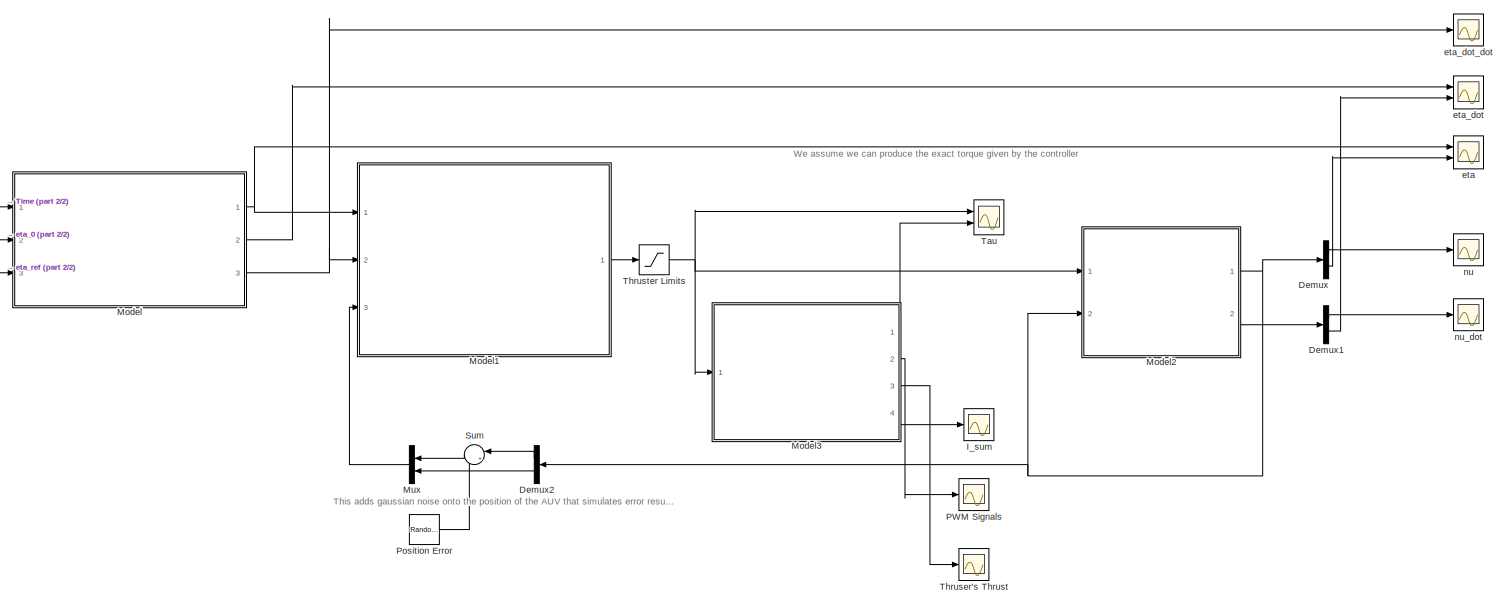
[diagram: root canvas - part 1/2, most of the canvas]
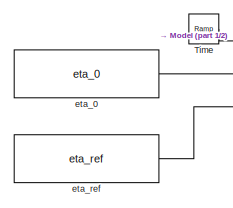
[diagram: root canvas - part 2/2, middle left region]
MODEL slx_5f0453d92f2a
KIND model
CONFIG AbsTol = auto
CONFIG EnableMultiTasking = off
CONFIG FixedStep = auto
CONFIG MaxStep = auto
CONFIG MinStep = auto
CONFIG RelTol = 1e-3
CONFIG SampleTimeConstraint = Unconstrained
CONFIG Solver = VariableStepAuto
CONFIG SolverName = VariableStepAuto
CONFIG StartTime = 0.0
CONFIG StopTime = 60.0
BLOCK [Demux] Demux
  DisplayOption = bar
  Outputs = [6,6]
  Ports = [1, 2]
BLOCK [Demux] Demux1
  DisplayOption = bar
  Outputs = [6,6]
  Ports = [1, 2]
BLOCK [Demux] Demux2
  DisplayOption = bar
  Outputs = 2
  Ports = [1, 2]
BLOCK [Scope] I_sum
  Floating = off
  NumInputPorts = 1
  Ports = [1]
  ScopeSpecificationString = Simulink.scopes.TimeScopeBlockCfg('CurrentConfiguration', extmgr.ConfigurationSet(extmgr.Configuration('Core','General UI',true),extmgr.Configuration('Core','Source UI',true),extmgr.Configuration('Sources','WiredSimulink',true,'DataLoggingVariableName','ScopeData1'),extmgr.Configuration('Visuals','Time Domain',true,'SerializedDisplays',{struct('MinYLimReal','-17.529','MaxYLimReal','22.16106','YLab...<+1443ch>
BLOCK [ModelReference] Model
  ModelNameDialog = trajectory_planner.slx
  ModelReferenceVersion = 1.30
  Ports = [3, 3]
BLOCK [ModelReference] Model1
  ModelNameDialog = controller.slx
  ModelReferenceVersion = 1.73
  Ports = [3, 1]
BLOCK [ModelReference] Model2
  ModelNameDialog = auv_model
  ModelReferenceVersion = 1.19
  Ports = [2, 2]
BLOCK [ModelReference] Model3
  ModelNameDialog = thrust_allocation.slx
  ModelReferenceVersion = 1.76
  Ports = [1, 4]
BLOCK [Mux] Mux
  DisplayOption = bar
  Inputs = 2
  Ports = [2, 1]
BLOCK [Scope] PWM Signals
  Floating = off
  NumInputPorts = 1
  Ports = [1]
  ScopeSpecificationString = Simulink.scopes.TimeScopeBlockCfg('CurrentConfiguration', extmgr.ConfigurationSet(extmgr.Configuration('Core','General UI',true),extmgr.Configuration('Core','Source UI',true),extmgr.Configuration('Sources','WiredSimulink',true,'DataLoggingVariableName','ScopeData2'),extmgr.Configuration('Visuals','Time Domain',true,'SerializedDisplays',{struct('MinYLimReal','1212.01711','MaxYLimReal','1716.52304',...<+1573ch>
BLOCK [RandomNumber] Position Error
  Mean = 0.1
  SampleTime = 0.25
  Seed = 1
  Variance = 0.2
BLOCK [Sum] Sum
  IconShape = round
  InputSameDT = off
  Inputs = |++
  OutDataTypeStr = Inherit: Inherit via internal rule
  Ports = [2, 1]
  SaturateOnIntegerOverflow = off
BLOCK [Scope] Tau
  Floating = off
  NumInputPorts = 2
  Ports = [2]
  ScopeSpecificationString = Simulink.scopes.TimeScopeBlockCfg('CurrentConfiguration', extmgr.ConfigurationSet(extmgr.Configuration('Core','General UI',true),extmgr.Configuration('Core','Source UI',true),extmgr.Configuration('Sources','WiredSimulink',true,'DataLoggingVariableName','ScopeData1'),extmgr.Configuration('Visuals','Time Domain',true,'SerializedDisplays',{struct('MinYLimReal','-10.44325','MaxYLimReal','83.07524','YL...<+1686ch>
BLOCK [Scope] Thruser's Thrust
  Floating = off
  NumInputPorts = 1
  Ports = [1]
  ScopeSpecificationString = Simulink.scopes.TimeScopeBlockCfg('CurrentConfiguration', extmgr.ConfigurationSet(extmgr.Configuration('Core','General UI',true),extmgr.Configuration('Core','Source UI',true),extmgr.Configuration('Sources','WiredSimulink',true,'DataLoggingVariableName','ScopeData3'),extmgr.Configuration('Visuals','Time Domain',true,'SerializedDisplays',{struct('MinYLimReal','-17.529','MaxYLimReal','17.297','YLabel...<+1532ch>
BLOCK [Saturate] Thruster Limits
  InputPortMap = u0
  LowerLimit = thrust_lower_limit
  Ports = [1, 1]
  UpperLimit = thrust_upper_limit
BLOCK [Reference] Time   REF=simulink/Sources/Ramp
  Ports = [0, 1]
  SourceBlock = simulink/Sources/Ramp
  SourceProductBaseCode = SL
  SourceProductName = Simulink
  SourceType = Ramp
BLOCK [Scope] eta
  Floating = off
  NumInputPorts = 2
  Ports = [2]
  ScopeSpecificationString = Simulink.scopes.TimeScopeBlockCfg('CurrentConfiguration', extmgr.ConfigurationSet(extmgr.Configuration('Core','General UI',true),extmgr.Configuration('Core','Source UI',true),extmgr.Configuration('Sources','WiredSimulink',true,'DataLoggingVariableName','ScopeData2'),extmgr.Configuration('Visuals','Time Domain',true,'SerializedDisplays',{struct('MinYLimReal','-0.87581','MaxYLimReal','7.88226','YLab...<+1576ch>
BLOCK [Constant] eta_0
  Value = eta_0
BLOCK [Scope] eta_dot
  Floating = off
  NumInputPorts = 2
  Ports = [2]
  ScopeSpecificationString = Simulink.scopes.TimeScopeBlockCfg('CurrentConfiguration', extmgr.ConfigurationSet(extmgr.Configuration('Core','General UI',true),extmgr.Configuration('Core','Source UI',true),extmgr.Configuration('Sources','WiredSimulink',true,'DataLoggingVariableName','ScopeData3'),extmgr.Configuration('Visuals','Time Domain',true,'SerializedDisplays',{struct('MinYLimReal','-1.51609','MaxYLimReal','1.81488','YLab...<+1507ch>
BLOCK [Scope] eta_dot_dot
  Floating = off
  NumInputPorts = 1
  Ports = [1]
  ScopeSpecificationString = Simulink.scopes.TimeScopeBlockCfg('CurrentConfiguration', extmgr.ConfigurationSet(extmgr.Configuration('Core','General UI',true),extmgr.Configuration('Core','Source UI',true),extmgr.Configuration('Sources','WiredSimulink',true,'DataLoggingVariableName','ScopeData4'),extmgr.Configuration('Visuals','Time Domain',true,'SerializedDisplays',{struct('MinYLimReal','-0.00357','MaxYLimReal','0.03209','YLab...<+1428ch>
BLOCK [Constant] eta_ref
  Value = eta_ref
BLOCK [Scope] nu
  Floating = off
  NumInputPorts = 1
  Ports = [1]
  ScopeSpecificationString = Simulink.scopes.TimeScopeBlockCfg('CurrentConfiguration', extmgr.ConfigurationSet(extmgr.Configuration('Core','General UI',true),extmgr.Configuration('Core','Source UI',true),extmgr.Configuration('Sources','WiredSimulink',true,'DataLoggingVariableName','ScopeData5'),extmgr.Configuration('Visuals','Time Domain',true,'SerializedDisplays',{struct('MinYLimReal','-1.47689','MaxYLimReal','1.49279','YLab...<+1426ch>
BLOCK [Scope] nu_dot
  Floating = off
  NumInputPorts = 1
  Ports = [1]
  ScopeSpecificationString = Simulink.scopes.TimeScopeBlockCfg('CurrentConfiguration', extmgr.ConfigurationSet(extmgr.Configuration('Core','General UI',true),extmgr.Configuration('Core','Source UI',true),extmgr.Configuration('Sources','WiredSimulink',true),extmgr.Configuration('Visuals','Time Domain',true,'SerializedDisplays',{struct('MinYLimReal','-0.74555','MaxYLimReal','0.89478','YLabelReal','','MinYLimMag','0.00000','MaxY...<+1395ch>
ANNOTATION (root): This adds gaussian noise onto the position of the AUV that simulates error resulting from our model inaccuracies. We can set the mean of the error to be away from 0 to simulate a modelling error where we always over/under produce thrust. We can adjust the variance of the error to test the robustness of the controller
ANNOTATION (root): We assume we can produce the exact torque given by the controller
LINE Demux1:1 -> nu_dot:1
LINE Demux1:2 -> eta_dot:2
LINE Demux2:1 -> Sum:1
LINE Demux2:2 -> Mux:2
LINE Demux:1 -> nu:1
LINE Demux:2 -> eta:2
LINE Model1:1 -> Thruster Limits:1
NET Model2:1 -> Demux2:1, Demux:1, Model2:2
LINE Model2:2 -> Demux1:1
LINE Model3:1 -> Tau:2
LINE Model3:2 -> PWM Signals:1
LINE Model3:3 -> Thruser's Thrust:1
LINE Model3:4 -> I_sum:1
NET Model:1 -> Model1:1, eta:1
LINE Model:2 -> eta_dot:1
NET Model:3 -> Model1:2, eta_dot_dot:1
LINE Mux:1 -> Model1:3
LINE Position Error:1 -> Sum:2
LINE Sum:1 -> Mux:1
NET Thruster Limits:1 -> Model2:1, Model3:1, Tau:1
LINE Time :1 -> Model:1
LINE eta_0:1 -> Model:2
LINE eta_ref:1 -> Model:3
note: NET lines group one-source signal fan-out (src -> all destinations, sorted); 1:1 wires keep LINE
